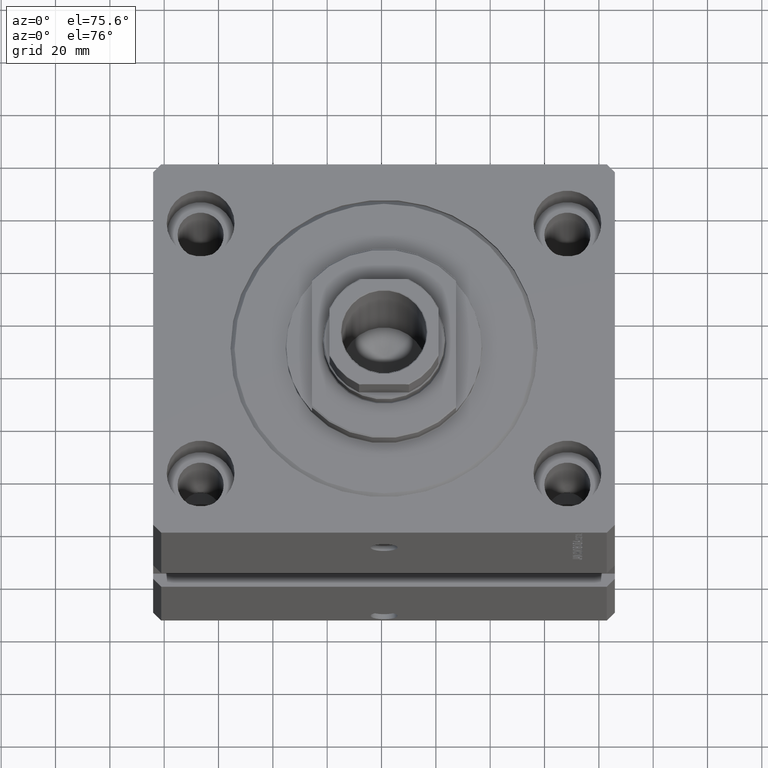
[diagram: clean part render]
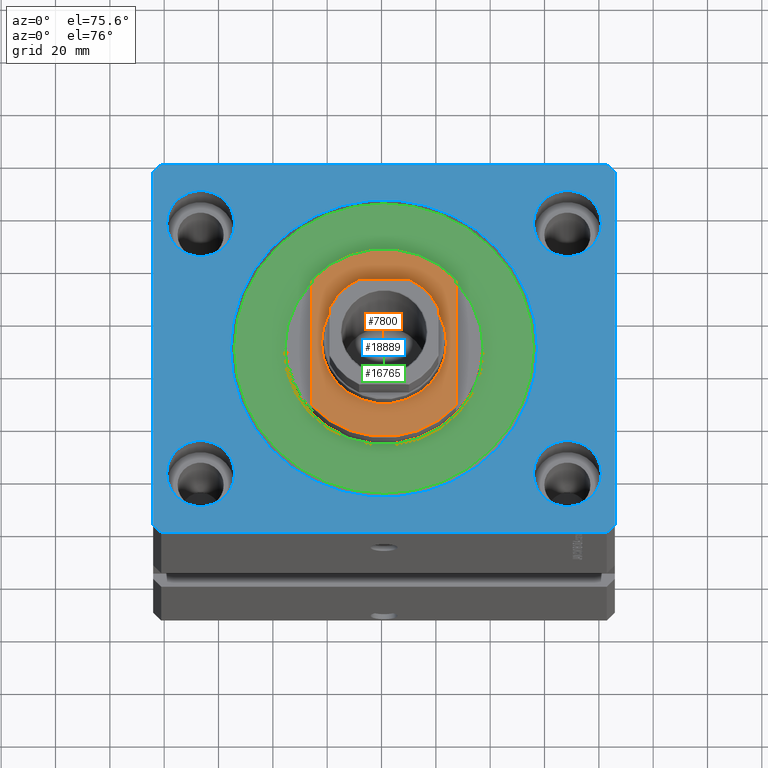
[diagram: same view with three faces highlighted in distinct colors, each labeled with its STEP entity id]
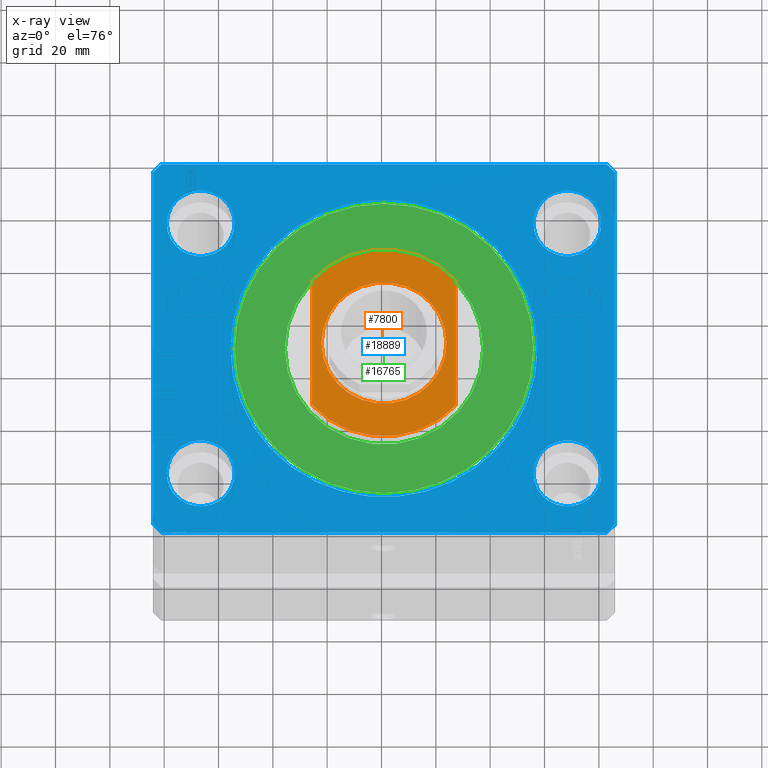
[diagram: x-ray of the same camera — body ghosted, the three highlighted faces saturated]
A machine part, auxiliary view with three faces highlighted in distinct colors.
The next image is the same camera in x-ray (body ghosted, the three faces saturated) — at least one of them is partly hidden behind the body in this view.
Their STEP definitions:

[orange] entity #7800 — the highlighted planar face has unit normal (0, 0, 1).
#1689 = VERTEX_POINT ( 'NONE', #34437 ) ;
#2875 = DIRECTION ( 'NONE',  ( -0.000000000000000000, -0.000000000000000000, 1.000000000000000000 ) ) ;
#3991 = EDGE_CURVE ( 'NONE', #41528, #20121, #4778, .T. ) ;
#4529 = FACE_OUTER_BOUND ( 'NONE', #40757, .T. ) ;
#4778 = CIRCLE ( 'NONE', #16596, 35.49999999999999289 ) ;
#5602 = CARTESIAN_POINT ( 'NONE',  ( 26.50000000000000000, -23.62202362203541739, -8.000000000000000000 ) ) ;
#5667 = CARTESIAN_POINT ( 'NONE',  ( -23.00000000000000355, 0.000000000000000000, -8.000000000000000000 ) ) ;
#5985 = ORIENTED_EDGE ( 'NONE', *, *, #3991, .T. ) ;
#6337 = ORIENTED_EDGE ( 'NONE', *, *, #10066, .T. ) ;
#6587 = CARTESIAN_POINT ( 'NONE',  ( 0.000000000000000000, 0.000000000000000000, -8.000000000000000000 ) ) ;
#7800 = ADVANCED_FACE ( 'NONE', ( #36199, #4529 ), #18621, .T. ) ;
#8902 = ORIENTED_EDGE ( 'NONE', *, *, #13384, .T. ) ;
#10066 = EDGE_CURVE ( 'NONE', #1689, #27294, #44799, .T. ) ;
#10078 = EDGE_LOOP ( 'NONE', ( #27072, #34718 ) ) ;
#12300 = CARTESIAN_POINT ( 'NONE',  ( -26.50000000000000000, -23.62202362203541739, -8.000000000000000000 ) ) ;
#13384 = EDGE_CURVE ( 'NONE', #27294, #41528, #15559, .T. ) ;
#13513 = CARTESIAN_POINT ( 'NONE',  ( 0.000000000000000000, 0.000000000000000000, -8.000000000000000000 ) ) ;
#14483 = EDGE_CURVE ( 'NONE', #40198, #25274, #27953, .T. ) ;
#14659 = DIRECTION ( 'NONE',  ( -0.000000000000000000, -1.000000000000000000, -0.000000000000000000 ) ) ;
#15152 = CARTESIAN_POINT ( 'NONE',  ( 0.000000000000000000, 0.000000000000000000, -8.000000000000000000 ) ) ;
#15559 = LINE ( 'NONE', #39398, #36751 ) ;
#16596 = AXIS2_PLACEMENT_3D ( 'NONE', #17234, #16780, #30637 ) ;
#16780 = DIRECTION ( 'NONE',  ( 0.000000000000000000, 0.000000000000000000, -1.000000000000000000 ) ) ;
#17072 = EDGE_CURVE ( 'NONE', #1689, #20121, #41947, .T. ) ;
#17234 = CARTESIAN_POINT ( 'NONE',  ( 0.000000000000000000, 0.000000000000000000, -8.000000000000000000 ) ) ;
#17654 = DIRECTION ( 'NONE',  ( -1.000000000000000000, 0.000000000000000000, 0.000000000000000000 ) ) ;
#17806 = EDGE_CURVE ( 'NONE', #25274, #40198, #39734, .T. ) ;
#18118 = CARTESIAN_POINT ( 'NONE',  ( -26.50000000000000000, -36.36963018783666257, -8.000000000000000000 ) ) ;
#18621 = PLANE ( 'NONE',  #44005 ) ;
#20121 = VERTEX_POINT ( 'NONE', #12300 ) ;
#20652 = ORIENTED_EDGE ( 'NONE', *, *, #17072, .F. ) ;
#24296 = CARTESIAN_POINT ( 'NONE',  ( 0.000000000000000000, 0.000000000000000000, -8.000000000000000000 ) ) ;
#24391 = DIRECTION ( 'NONE',  ( -1.000000000000000000, 0.000000000000000000, 0.000000000000000000 ) ) ;
#24750 = DIRECTION ( 'NONE',  ( -0.000000000000000000, -0.000000000000000000, 1.000000000000000000 ) ) ;
#24899 = AXIS2_PLACEMENT_3D ( 'NONE', #13513, #28691, #24391 ) ;
#25274 = VERTEX_POINT ( 'NONE', #5667 ) ;
#27072 = ORIENTED_EDGE ( 'NONE', *, *, #17806, .T. ) ;
#27294 = VERTEX_POINT ( 'NONE', #37441 ) ;
#27748 = DIRECTION ( 'NONE',  ( -1.000000000000000000, 0.000000000000000000, 0.000000000000000000 ) ) ;
#27953 = CIRCLE ( 'NONE', #42693, 23.00000000000000355 ) ;
#28691 = DIRECTION ( 'NONE',  ( 0.000000000000000000, 0.000000000000000000, -1.000000000000000000 ) ) ;
#29250 = DIRECTION ( 'NONE',  ( 0.000000000000000000, 0.000000000000000000, -1.000000000000000000 ) ) ;
#29651 = DIRECTION ( 'NONE',  ( 0.000000000000000000, -1.000000000000000000, -0.000000000000000000 ) ) ;
#30637 = DIRECTION ( 'NONE',  ( -1.000000000000000000, 0.000000000000000000, 0.000000000000000000 ) ) ;
#34437 = CARTESIAN_POINT ( 'NONE',  ( -26.50000000000000000, 23.62202362203541739, -8.000000000000000000 ) ) ;
#34555 = VECTOR ( 'NONE', #14659, 1000.000000000000000 ) ;
#34718 = ORIENTED_EDGE ( 'NONE', *, *, #14483, .T. ) ;
#36199 = FACE_BOUND ( 'NONE', #10078, .T. ) ;
#36751 = VECTOR ( 'NONE', #29651, 1000.000000000000000 ) ;
#37441 = CARTESIAN_POINT ( 'NONE',  ( 26.50000000000000000, 23.62202362203541739, -8.000000000000000000 ) ) ;
#39398 = CARTESIAN_POINT ( 'NONE',  ( 26.50000000000000000, -36.36963018783666257, -8.000000000000000000 ) ) ;
#39734 = CIRCLE ( 'NONE', #42690, 23.00000000000000355 ) ;
#40198 = VERTEX_POINT ( 'NONE', #40822 ) ;
#40757 = EDGE_LOOP ( 'NONE', ( #6337, #8902, #5985, #20652 ) ) ;
#40822 = CARTESIAN_POINT ( 'NONE',  ( 23.00000000000000355, 2.816687638038912746E-15, -8.000000000000000000 ) ) ;
#41528 = VERTEX_POINT ( 'NONE', #5602 ) ;
#41947 = LINE ( 'NONE', #18118, #34555 ) ;
#42690 = AXIS2_PLACEMENT_3D ( 'NONE', #6587, #2875, #17654 ) ;
#42693 = AXIS2_PLACEMENT_3D ( 'NONE', #24296, #24750, #27748 ) ;
#43346 = DIRECTION ( 'NONE',  ( -1.000000000000000000, 0.000000000000000000, -0.000000000000000000 ) ) ;
#44005 = AXIS2_PLACEMENT_3D ( 'NONE', #15152, #29250, #43346 ) ;
#44799 = CIRCLE ( 'NONE', #24899, 35.49999999999999289 ) ;

[blue] entity #18889 — the highlighted planar face has unit normal (0, 0, 1).
#105 = DIRECTION ( 'NONE',  ( 0.000000000000000000, 0.000000000000000000, 1.000000000000000000 ) ) ;
#297 = VERTEX_POINT ( 'NONE', #25877 ) ;
#337 = EDGE_CURVE ( 'NONE', #27692, #37021, #15118, .T. ) ;
#557 = CARTESIAN_POINT ( 'NONE',  ( -67.50000000000000000, -47.50000000000000000, 0.000000000000000000 ) ) ;
#683 = DIRECTION ( 'NONE',  ( 3.935492064902608811E-15, 1.000000000000000000, 0.000000000000000000 ) ) ;
#912 = VERTEX_POINT ( 'NONE', #6959 ) ;
#1082 = FACE_OUTER_BOUND ( 'NONE', #6154, .T. ) ;
#1208 = CARTESIAN_POINT ( 'NONE',  ( 80.00000000000000000, 47.50000000000001421, 0.000000000000000000 ) ) ;
#1312 = FACE_BOUND ( 'NONE', #34935, .T. ) ;
#1592 = CARTESIAN_POINT ( 'NONE',  ( -82.00000000000000000, 70.00000000000000000, 0.000000000000000000 ) ) ;
#1834 = VECTOR ( 'NONE', #39800, 1000.000000000000000 ) ;
#1877 = EDGE_CURVE ( 'NONE', #13908, #912, #7673, .T. ) ;
#1997 = FACE_BOUND ( 'NONE', #10877, .T. ) ;
#2144 = CARTESIAN_POINT ( 'NONE',  ( -82.00000000000000000, 70.00000000000000000, 0.000000000000000000 ) ) ;
#2282 = VERTEX_POINT ( 'NONE', #4433 ) ;
#2357 = DIRECTION ( 'NONE',  ( -0.7071067811865344721, 0.7071067811865606734, 0.000000000000000000 ) ) ;
#2800 = DIRECTION ( 'NONE',  ( 1.000000000000000000, 0.000000000000000000, 0.000000000000000000 ) ) ;
#3425 = EDGE_CURVE ( 'NONE', #297, #2282, #31887, .T. ) ;
#4033 = DIRECTION ( 'NONE',  ( 0.000000000000000000, 0.000000000000000000, 1.000000000000000000 ) ) ;
#4433 = CARTESIAN_POINT ( 'NONE',  ( 85.00000000000001421, -66.99999999999998579, 0.000000000000000000 ) ) ;
#5240 = DIRECTION ( 'NONE',  ( 1.000000000000000000, 0.000000000000000000, -0.000000000000000000 ) ) ;
#5510 = DIRECTION ( 'NONE',  ( 0.000000000000000000, 0.000000000000000000, 1.000000000000000000 ) ) ;
#5561 = VERTEX_POINT ( 'NONE', #37057 ) ;
#5807 = EDGE_CURVE ( 'NONE', #10010, #297, #19422, .T. ) ;
#5812 = AXIS2_PLACEMENT_3D ( 'NONE', #32750, #29960, #5240 ) ;
#6154 = EDGE_LOOP ( 'NONE', ( #16092, #33272, #15855, #11260, #8642, #11436, #9155, #45494 ) ) ;
#6296 = CARTESIAN_POINT ( 'NONE',  ( 67.50000000000000000, 47.50000000000001421, 0.000000000000000000 ) ) ;
#6520 = EDGE_LOOP ( 'NONE', ( #37315, #42040 ) ) ;
#6959 = CARTESIAN_POINT ( 'NONE',  ( 56.50000000000000711, 0.000000000000000000, 0.000000000000000000 ) ) ;
#7413 = DIRECTION ( 'NONE',  ( 0.7071067811865459074, 0.7071067811865491270, 0.000000000000000000 ) ) ;
#7424 = ORIENTED_EDGE ( 'NONE', *, *, #36437, .F. ) ;
#7592 = EDGE_CURVE ( 'NONE', #22864, #22332, #40321, .T. ) ;
#7673 = CIRCLE ( 'NONE', #41613, 56.50000000000000711 ) ;
#7820 = VERTEX_POINT ( 'NONE', #43789 ) ;
#8106 = VERTEX_POINT ( 'NONE', #2144 ) ;
#8322 = VERTEX_POINT ( 'NONE', #31485 ) ;
#8370 = EDGE_LOOP ( 'NONE', ( #12514, #34244 ) ) ;
#8642 = ORIENTED_EDGE ( 'NONE', *, *, #5807, .T. ) ;
#8725 = CARTESIAN_POINT ( 'NONE',  ( 0.000000000000000000, 0.000000000000000000, 0.000000000000000000 ) ) ;
#9089 = CARTESIAN_POINT ( 'NONE',  ( 55.00000000000000711, -47.50000000000000000, 0.000000000000000000 ) ) ;
#9124 = LINE ( 'NONE', #22987, #41283 ) ;
#9155 = ORIENTED_EDGE ( 'NONE', *, *, #34193, .T. ) ;
#9285 = VECTOR ( 'NONE', #683, 1000.000000000000000 ) ;
#9453 = AXIS2_PLACEMENT_3D ( 'NONE', #25119, #32700, #11673 ) ;
#9539 = DIRECTION ( 'NONE',  ( 0.000000000000000000, 0.000000000000000000, 1.000000000000000000 ) ) ;
#9553 = VECTOR ( 'NONE', #2357, 1000.000000000000000 ) ;
#9623 = DIRECTION ( 'NONE',  ( 1.000000000000000000, 0.000000000000000000, 0.000000000000000000 ) ) ;
#10010 = VERTEX_POINT ( 'NONE', #12815 ) ;
#10685 = CARTESIAN_POINT ( 'NONE',  ( -55.00000000000000711, -47.50000000000000000, 0.000000000000000000 ) ) ;
#10877 = EDGE_LOOP ( 'NONE', ( #38093, #29635 ) ) ;
#11253 = CARTESIAN_POINT ( 'NONE',  ( 80.00000000000000000, -47.50000000000000000, 0.000000000000000000 ) ) ;
#11260 = ORIENTED_EDGE ( 'NONE', *, *, #25593, .T. ) ;
#11372 = VECTOR ( 'NONE', #14145, 1000.000000000000000 ) ;
#11436 = ORIENTED_EDGE ( 'NONE', *, *, #3425, .T. ) ;
#11537 = CARTESIAN_POINT ( 'NONE',  ( 85.00000000000001421, -66.99999999999998579, 0.000000000000000000 ) ) ;
#11673 = DIRECTION ( 'NONE',  ( 1.000000000000000000, 0.000000000000000000, 0.000000000000000000 ) ) ;
#12503 = CIRCLE ( 'NONE', #33157, 56.50000000000000711 ) ;
#12514 = ORIENTED_EDGE ( 'NONE', *, *, #41615, .F. ) ;
#12815 = CARTESIAN_POINT ( 'NONE',  ( -82.00000000000001421, -70.00000000000000000, 0.000000000000000000 ) ) ;
#13724 = VERTEX_POINT ( 'NONE', #41383 ) ;
#13774 = CARTESIAN_POINT ( 'NONE',  ( -67.50000000000000000, -47.50000000000000000, 0.000000000000000000 ) ) ;
#13885 = CARTESIAN_POINT ( 'NONE',  ( -55.00000000000000711, 47.50000000000000000, 0.000000000000000000 ) ) ;
#13908 = VERTEX_POINT ( 'NONE', #27406 ) ;
#13983 = CIRCLE ( 'NONE', #37558, 12.49999999999999645 ) ;
#14145 = DIRECTION ( 'NONE',  ( -1.035655806553317576E-16, -1.000000000000000000, 0.000000000000000000 ) ) ;
#14662 = DIRECTION ( 'NONE',  ( 1.000000000000000000, 0.000000000000000000, 0.000000000000000000 ) ) ;
#14913 = VERTEX_POINT ( 'NONE', #24924 ) ;
#15059 = DIRECTION ( 'NONE',  ( 1.000000000000000000, 0.000000000000000000, 0.000000000000000000 ) ) ;
#15118 = CIRCLE ( 'NONE', #40222, 12.49999999999999645 ) ;
#15855 = ORIENTED_EDGE ( 'NONE', *, *, #25792, .T. ) ;
#15983 = EDGE_CURVE ( 'NONE', #13724, #7820, #26005, .T. ) ;
#16003 = CIRCLE ( 'NONE', #27063, 12.49999999999999645 ) ;
#16092 = ORIENTED_EDGE ( 'NONE', *, *, #20889, .T. ) ;
#16558 = VECTOR ( 'NONE', #7413, 1000.000000000000000 ) ;
#16698 = LINE ( 'NONE', #27334, #29047 ) ;
#16852 = VERTEX_POINT ( 'NONE', #29699 ) ;
#17614 = LINE ( 'NONE', #31719, #11372 ) ;
#18199 = DIRECTION ( 'NONE',  ( 0.000000000000000000, 0.000000000000000000, 1.000000000000000000 ) ) ;
#18889 = ADVANCED_FACE ( 'NONE', ( #1312, #1997, #29052, #19551, #22128, #1082 ), #43147, .T. ) ;
#18933 = CIRCLE ( 'NONE', #24877, 12.49999999999999645 ) ;
#18980 = CARTESIAN_POINT ( 'NONE',  ( 67.50000000000000000, -47.50000000000000000, 0.000000000000000000 ) ) ;
#19145 = VECTOR ( 'NONE', #27241, 1000.000000000000114 ) ;
#19422 = LINE ( 'NONE', #30056, #1834 ) ;
#19551 = FACE_BOUND ( 'NONE', #37590, .T. ) ;
#20055 = DIRECTION ( 'NONE',  ( 1.000000000000000000, 0.000000000000000000, 0.000000000000000000 ) ) ;
#20422 = EDGE_CURVE ( 'NONE', #912, #13908, #12503, .T. ) ;
#20889 = EDGE_CURVE ( 'NONE', #7820, #8106, #9124, .T. ) ;
#22054 = CIRCLE ( 'NONE', #26467, 12.49999999999999645 ) ;
#22128 = FACE_BOUND ( 'NONE', #6520, .T. ) ;
#22332 = VERTEX_POINT ( 'NONE', #11253 ) ;
#22630 = AXIS2_PLACEMENT_3D ( 'NONE', #557, #4033, #14662 ) ;
#22818 = DIRECTION ( 'NONE',  ( 1.000000000000000000, 0.000000000000000000, 0.000000000000000000 ) ) ;
#22864 = VERTEX_POINT ( 'NONE', #9089 ) ;
#22868 = ORIENTED_EDGE ( 'NONE', *, *, #40366, .F. ) ;
#22987 = CARTESIAN_POINT ( 'NONE',  ( 82.00000000000059686, 70.00000000000002842, 0.000000000000000000 ) ) ;
#23043 = DIRECTION ( 'NONE',  ( 0.000000000000000000, 0.000000000000000000, 1.000000000000000000 ) ) ;
#23375 = VERTEX_POINT ( 'NONE', #1208 ) ;
#23635 = CARTESIAN_POINT ( 'NONE',  ( 85.00000000000055422, 66.99999999999997158, 0.000000000000000000 ) ) ;
#23776 = LINE ( 'NONE', #1592, #19145 ) ;
#24328 = DIRECTION ( 'NONE',  ( 1.000000000000000000, 0.000000000000000000, 0.000000000000000000 ) ) ;
#24417 = DIRECTION ( 'NONE',  ( 0.000000000000000000, 0.000000000000000000, 1.000000000000000000 ) ) ;
#24824 = ORIENTED_EDGE ( 'NONE', *, *, #35762, .F. ) ;
#24877 = AXIS2_PLACEMENT_3D ( 'NONE', #18980, #33083, #15059 ) ;
#24924 = CARTESIAN_POINT ( 'NONE',  ( -85.00000000000000000, 67.00000000000000000, 0.000000000000000000 ) ) ;
#24977 = CARTESIAN_POINT ( 'NONE',  ( 82.00000000000001421, -70.00000000000000000, 0.000000000000000000 ) ) ;
#25119 = CARTESIAN_POINT ( 'NONE',  ( -67.50000000000000000, 47.50000000000000000, 0.000000000000000000 ) ) ;
#25593 = EDGE_CURVE ( 'NONE', #8322, #10010, #16698, .T. ) ;
#25596 = CIRCLE ( 'NONE', #22630, 12.49999999999999645 ) ;
#25662 = ORIENTED_EDGE ( 'NONE', *, *, #337, .F. ) ;
#25792 = EDGE_CURVE ( 'NONE', #14913, #8322, #17614, .T. ) ;
#25877 = CARTESIAN_POINT ( 'NONE',  ( 82.00000000000001421, -70.00000000000000000, 0.000000000000000000 ) ) ;
#26005 = LINE ( 'NONE', #23635, #9553 ) ;
#26467 = AXIS2_PLACEMENT_3D ( 'NONE', #6296, #9539, #24328 ) ;
#26749 = CARTESIAN_POINT ( 'NONE',  ( 0.000000000000000000, 0.000000000000000000, 0.000000000000000000 ) ) ;
#27063 = AXIS2_PLACEMENT_3D ( 'NONE', #13774, #24417, #9623 ) ;
#27241 = DIRECTION ( 'NONE',  ( -0.7071067811865474617, -0.7071067811865474617, 0.000000000000000000 ) ) ;
#27334 = CARTESIAN_POINT ( 'NONE',  ( -85.00000000000001421, -67.00000000000000000, 0.000000000000000000 ) ) ;
#27406 = CARTESIAN_POINT ( 'NONE',  ( -56.50000000000000711, 6.919254415182546126E-15, 0.000000000000000000 ) ) ;
#27692 = VERTEX_POINT ( 'NONE', #29989 ) ;
#29047 = VECTOR ( 'NONE', #34500, 1000.000000000000114 ) ;
#29052 = FACE_BOUND ( 'NONE', #8370, .T. ) ;
#29635 = ORIENTED_EDGE ( 'NONE', *, *, #7592, .F. ) ;
#29699 = CARTESIAN_POINT ( 'NONE',  ( 55.00000000000000711, 47.50000000000001421, 0.000000000000000000 ) ) ;
#29960 = DIRECTION ( 'NONE',  ( 0.000000000000000000, 0.000000000000000000, 1.000000000000000000 ) ) ;
#29989 = CARTESIAN_POINT ( 'NONE',  ( -80.00000000000000000, 47.50000000000000000, 0.000000000000000000 ) ) ;
#30056 = CARTESIAN_POINT ( 'NONE',  ( -82.00000000000001421, -70.00000000000000000, 0.000000000000000000 ) ) ;
#30125 = CIRCLE ( 'NONE', #9453, 12.49999999999999645 ) ;
#30150 = DIRECTION ( 'NONE',  ( -1.000000000000000000, -1.692413147294439807E-16, 0.000000000000000000 ) ) ;
#31485 = CARTESIAN_POINT ( 'NONE',  ( -85.00000000000001421, -67.00000000000000000, 0.000000000000000000 ) ) ;
#31719 = CARTESIAN_POINT ( 'NONE',  ( -85.00000000000000000, 67.00000000000000000, 0.000000000000000000 ) ) ;
#31887 = LINE ( 'NONE', #24977, #16558 ) ;
#32548 = DIRECTION ( 'NONE',  ( 0.000000000000000000, 0.000000000000000000, 1.000000000000000000 ) ) ;
#32700 = DIRECTION ( 'NONE',  ( 0.000000000000000000, 0.000000000000000000, 1.000000000000000000 ) ) ;
#32750 = CARTESIAN_POINT ( 'NONE',  ( 0.000000000000000000, 0.000000000000000000, 0.000000000000000000 ) ) ;
#33083 = DIRECTION ( 'NONE',  ( 0.000000000000000000, 0.000000000000000000, 1.000000000000000000 ) ) ;
#33157 = AXIS2_PLACEMENT_3D ( 'NONE', #8725, #32548, #22818 ) ;
#33272 = ORIENTED_EDGE ( 'NONE', *, *, #43542, .T. ) ;
#33456 = DIRECTION ( 'NONE',  ( 1.000000000000000000, 0.000000000000000000, 0.000000000000000000 ) ) ;
#34193 = EDGE_CURVE ( 'NONE', #2282, #13724, #39743, .T. ) ;
#34244 = ORIENTED_EDGE ( 'NONE', *, *, #42381, .F. ) ;
#34500 = DIRECTION ( 'NONE',  ( 0.7071067811865474617, -0.7071067811865474617, 0.000000000000000000 ) ) ;
#34935 = EDGE_LOOP ( 'NONE', ( #24824, #7424 ) ) ;
#35244 = DIRECTION ( 'NONE',  ( 1.000000000000000000, 0.000000000000000000, 0.000000000000000000 ) ) ;
#35762 = EDGE_CURVE ( 'NONE', #36063, #5561, #25596, .T. ) ;
#35997 = CARTESIAN_POINT ( 'NONE',  ( 67.50000000000000000, 47.50000000000001421, 0.000000000000000000 ) ) ;
#36063 = VERTEX_POINT ( 'NONE', #10685 ) ;
#36437 = EDGE_CURVE ( 'NONE', #5561, #36063, #16003, .T. ) ;
#36719 = CARTESIAN_POINT ( 'NONE',  ( -67.50000000000000000, 47.50000000000000000, 0.000000000000000000 ) ) ;
#36759 = EDGE_CURVE ( 'NONE', #22332, #22864, #18933, .T. ) ;
#37021 = VERTEX_POINT ( 'NONE', #13885 ) ;
#37057 = CARTESIAN_POINT ( 'NONE',  ( -80.00000000000000000, -47.50000000000000000, 0.000000000000000000 ) ) ;
#37315 = ORIENTED_EDGE ( 'NONE', *, *, #20422, .F. ) ;
#37375 = CARTESIAN_POINT ( 'NONE',  ( 67.50000000000000000, -47.50000000000000000, 0.000000000000000000 ) ) ;
#37558 = AXIS2_PLACEMENT_3D ( 'NONE', #35997, #18199, #2800 ) ;
#37590 = EDGE_LOOP ( 'NONE', ( #22868, #25662 ) ) ;
#38093 = ORIENTED_EDGE ( 'NONE', *, *, #36759, .F. ) ;
#39743 = LINE ( 'NONE', #11537, #9285 ) ;
#39800 = DIRECTION ( 'NONE',  ( 1.000000000000000000, 0.000000000000000000, 0.000000000000000000 ) ) ;
#40222 = AXIS2_PLACEMENT_3D ( 'NONE', #36719, #5510, #20055 ) ;
#40321 = CIRCLE ( 'NONE', #45477, 12.49999999999999645 ) ;
#40366 = EDGE_CURVE ( 'NONE', #37021, #27692, #30125, .T. ) ;
#41283 = VECTOR ( 'NONE', #30150, 1000.000000000000000 ) ;
#41383 = CARTESIAN_POINT ( 'NONE',  ( 85.00000000000055422, 66.99999999999997158, 0.000000000000000000 ) ) ;
#41613 = AXIS2_PLACEMENT_3D ( 'NONE', #26749, #105, #35244 ) ;
#41615 = EDGE_CURVE ( 'NONE', #23375, #16852, #22054, .T. ) ;
#42040 = ORIENTED_EDGE ( 'NONE', *, *, #1877, .F. ) ;
#42381 = EDGE_CURVE ( 'NONE', #16852, #23375, #13983, .T. ) ;
#43147 = PLANE ( 'NONE',  #5812 ) ;
#43542 = EDGE_CURVE ( 'NONE', #8106, #14913, #23776, .T. ) ;
#43789 = CARTESIAN_POINT ( 'NONE',  ( 82.00000000000059686, 70.00000000000002842, 0.000000000000000000 ) ) ;
#45477 = AXIS2_PLACEMENT_3D ( 'NONE', #37375, #23043, #33456 ) ;
#45494 = ORIENTED_EDGE ( 'NONE', *, *, #15983, .T. ) ;

[green] entity #16765 — the highlighted planar face has unit normal (0, 0, -1).
#1691 = CARTESIAN_POINT ( 'NONE',  ( 0.000000000000000000, 0.000000000000000000, 0.000000000000000000 ) ) ;
#2236 = DIRECTION ( 'NONE',  ( -0.000000000000000000, -0.000000000000000000, -1.000000000000000000 ) ) ;
#2635 = EDGE_CURVE ( 'NONE', #32600, #29506, #23941, .T. ) ;
#4314 = DIRECTION ( 'NONE',  ( 0.000000000000000000, 0.000000000000000000, 1.000000000000000000 ) ) ;
#4460 = ORIENTED_EDGE ( 'NONE', *, *, #2635, .T. ) ;
#5045 = CIRCLE ( 'NONE', #16863, 36.50000000000000000 ) ;
#7846 = DIRECTION ( 'NONE',  ( 1.000000000000000000, 0.000000000000000000, 0.000000000000000000 ) ) ;
#9488 = CIRCLE ( 'NONE', #15381, 36.50000000000000000 ) ;
#9593 = CIRCLE ( 'NONE', #18454, 55.00000000000002132 ) ;
#11241 = CARTESIAN_POINT ( 'NONE',  ( 0.000000000000000000, 0.000000000000000000, 0.000000000000000000 ) ) ;
#11920 = DIRECTION ( 'NONE',  ( 1.000000000000000000, 0.000000000000000000, -0.000000000000000000 ) ) ;
#12013 = CARTESIAN_POINT ( 'NONE',  ( 0.000000000000000000, 0.000000000000000000, 0.000000000000000000 ) ) ;
#12638 = CARTESIAN_POINT ( 'NONE',  ( 0.000000000000000000, 0.000000000000000000, 0.000000000000000000 ) ) ;
#14222 = EDGE_CURVE ( 'NONE', #20948, #43943, #5045, .T. ) ;
#14714 = FACE_OUTER_BOUND ( 'NONE', #36231, .T. ) ;
#15381 = AXIS2_PLACEMENT_3D ( 'NONE', #12013, #26115, #19183 ) ;
#16765 = ADVANCED_FACE ( 'NONE', ( #32276, #14714 ), #28807, .F. ) ;
#16803 = ORIENTED_EDGE ( 'NONE', *, *, #41873, .T. ) ;
#16863 = AXIS2_PLACEMENT_3D ( 'NONE', #1691, #27116, #27350 ) ;
#17743 = ORIENTED_EDGE ( 'NONE', *, *, #44625, .T. ) ;
#18454 = AXIS2_PLACEMENT_3D ( 'NONE', #12638, #2236, #20019 ) ;
#19183 = DIRECTION ( 'NONE',  ( 1.000000000000000000, 0.000000000000000000, 0.000000000000000000 ) ) ;
#19490 = AXIS2_PLACEMENT_3D ( 'NONE', #38829, #29091, #7846 ) ;
#19693 = CARTESIAN_POINT ( 'NONE',  ( -55.00000000000002132, 6.827405905246494765E-15, 0.000000000000000000 ) ) ;
#20019 = DIRECTION ( 'NONE',  ( 1.000000000000000000, 0.000000000000000000, 0.000000000000000000 ) ) ;
#20948 = VERTEX_POINT ( 'NONE', #28283 ) ;
#21619 = EDGE_LOOP ( 'NONE', ( #16803, #22237 ) ) ;
#22237 = ORIENTED_EDGE ( 'NONE', *, *, #14222, .T. ) ;
#23941 = CIRCLE ( 'NONE', #19490, 55.00000000000002132 ) ;
#26115 = DIRECTION ( 'NONE',  ( 0.000000000000000000, 0.000000000000000000, 1.000000000000000000 ) ) ;
#27116 = DIRECTION ( 'NONE',  ( 0.000000000000000000, 0.000000000000000000, 1.000000000000000000 ) ) ;
#27350 = DIRECTION ( 'NONE',  ( 1.000000000000000000, 0.000000000000000000, 0.000000000000000000 ) ) ;
#28283 = CARTESIAN_POINT ( 'NONE',  ( -36.50000000000000000, 4.469960816887838430E-15, -2.168404344971008868E-16 ) ) ;
#28807 = PLANE ( 'NONE',  #31580 ) ;
#29091 = DIRECTION ( 'NONE',  ( -0.000000000000000000, -0.000000000000000000, -1.000000000000000000 ) ) ;
#29506 = VERTEX_POINT ( 'NONE', #42995 ) ;
#31580 = AXIS2_PLACEMENT_3D ( 'NONE', #11241, #4314, #11920 ) ;
#32276 = FACE_BOUND ( 'NONE', #21619, .T. ) ;
#32600 = VERTEX_POINT ( 'NONE', #19693 ) ;
#36231 = EDGE_LOOP ( 'NONE', ( #17743, #4460 ) ) ;
#36797 = CARTESIAN_POINT ( 'NONE',  ( 36.50000000000000000, 0.000000000000000000, -2.168404344971008868E-16 ) ) ;
#38829 = CARTESIAN_POINT ( 'NONE',  ( 0.000000000000000000, 0.000000000000000000, 0.000000000000000000 ) ) ;
#41873 = EDGE_CURVE ( 'NONE', #43943, #20948, #9488, .T. ) ;
#42995 = CARTESIAN_POINT ( 'NONE',  ( 55.00000000000002132, 0.000000000000000000, 0.000000000000000000 ) ) ;
#43943 = VERTEX_POINT ( 'NONE', #36797 ) ;
#44625 = EDGE_CURVE ( 'NONE', #29506, #32600, #9593, .T. ) ;